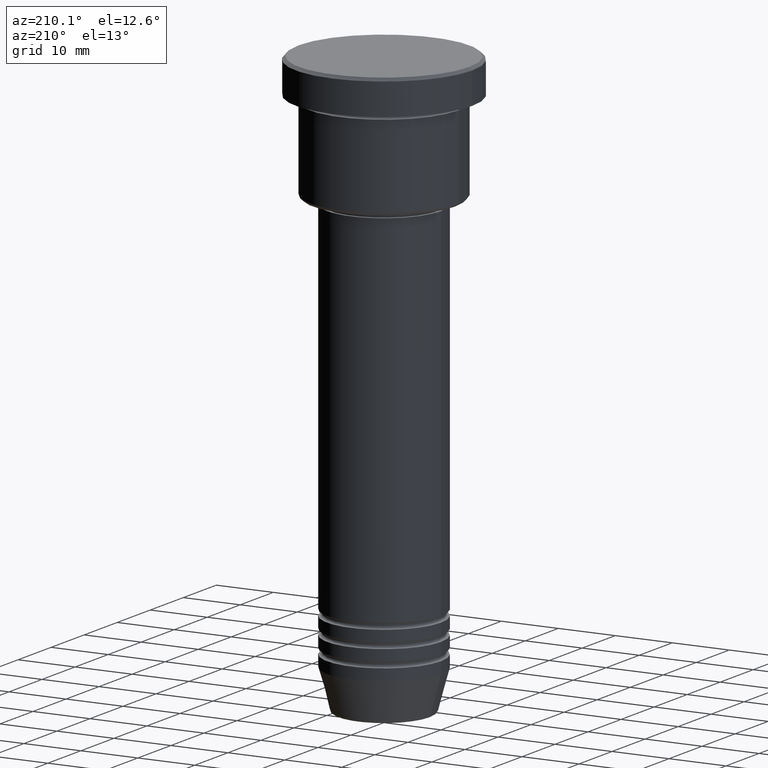
[diagram: clean part render]
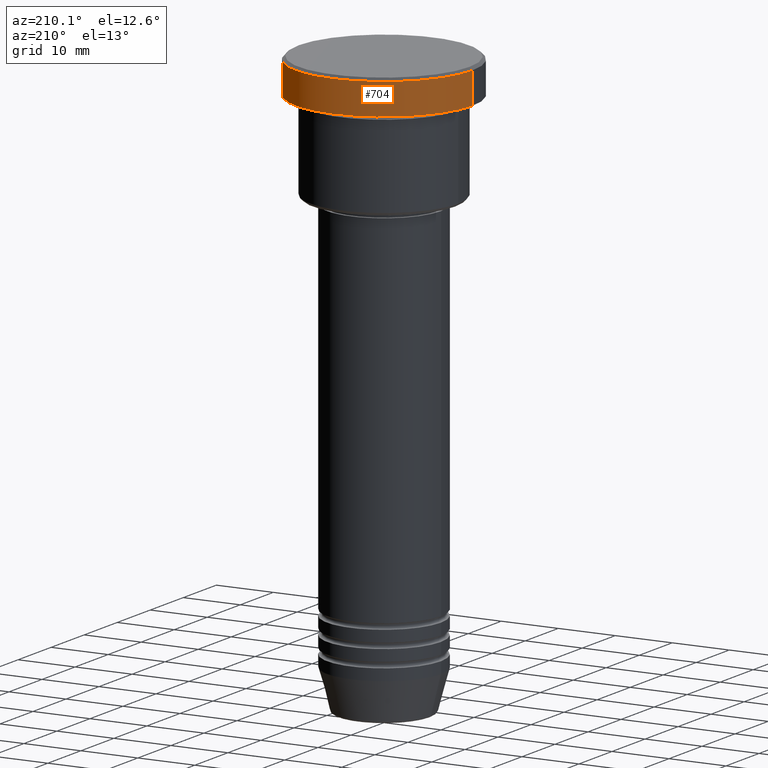
[diagram: same view with one face highlighted and labeled with its STEP entity id]
A machine part, auxiliary view. The second image highlights one B-rep face of the part: STEP entity #704.
In plain terms, the highlighted cylindrical surface (partial cylindrical patch) has radius 15.5 mm, axis along (-0, -0, 1).
Its self-contained STEP definition (entity closure, byte-faithful):
#53 = DIRECTION ( 'NONE',  ( 1.000000000000000000, 0.000000000000000000, 0.000000000000000000 ) ) ;
#70 = DIRECTION ( 'NONE',  ( 1.000000000000000000, 0.000000000000000000, 0.000000000000000000 ) ) ;
#77 = VERTEX_POINT ( 'NONE', #681 ) ;
#103 = ORIENTED_EDGE ( 'NONE', *, *, #303, .F. ) ;
#111 = EDGE_CURVE ( 'NONE', #77, #299, #594, .T. ) ;
#184 = FACE_OUTER_BOUND ( 'NONE', #839, .T. ) ;
#185 = EDGE_CURVE ( 'NONE', #299, #1053, #793, .T. ) ;
#205 = LINE ( 'NONE', #1174, #448 ) ;
#225 = ORIENTED_EDGE ( 'NONE', *, *, #613, .T. ) ;
#246 = CARTESIAN_POINT ( 'NONE',  ( 0.000000000000000000, 0.000000000000000000, -0.4999999999999987232 ) ) ;
#299 = VERTEX_POINT ( 'NONE', #730 ) ;
#303 = EDGE_CURVE ( 'NONE', #582, #1053, #205, .T. ) ;
#355 = DIRECTION ( 'NONE',  ( 0.000000000000000000, 0.000000000000000000, -1.000000000000000000 ) ) ;
#394 = ORIENTED_EDGE ( 'NONE', *, *, #185, .T. ) ;
#448 = VECTOR ( 'NONE', #1025, 1000.000000000000000 ) ;
#450 = CIRCLE ( 'NONE', #1117, 15.50000000000000000 ) ;
#503 = CARTESIAN_POINT ( 'NONE',  ( -15.50000000000000000, 1.898202538678397557E-15, 0.000000000000000000 ) ) ;
#531 = CYLINDRICAL_SURFACE ( 'NONE', #532, 15.50000000000000000 ) ;
#532 = AXIS2_PLACEMENT_3D ( 'NONE', #828, #891, #70 ) ;
#582 = VERTEX_POINT ( 'NONE', #896 ) ;
#594 = LINE ( 'NONE', #503, #854 ) ;
#613 = EDGE_CURVE ( 'NONE', #582, #77, #450, .T. ) ;
#637 = CARTESIAN_POINT ( 'NONE',  ( 0.000000000000000000, 0.000000000000000000, -5.999999999999995559 ) ) ;
#681 = CARTESIAN_POINT ( 'NONE',  ( -15.50000000000000000, 1.898202538678397557E-15, -5.999999999999995559 ) ) ;
#704 = ADVANCED_FACE ( 'NONE', ( #184 ), #531, .T. ) ;
#722 = CARTESIAN_POINT ( 'NONE',  ( 15.50000000000000000, 0.000000000000000000, -0.4999999999999987232 ) ) ;
#730 = CARTESIAN_POINT ( 'NONE',  ( -15.50000000000000000, 1.898202538678397557E-15, -0.4999999999999987232 ) ) ;
#775 = ORIENTED_EDGE ( 'NONE', *, *, #111, .T. ) ;
#793 = CIRCLE ( 'NONE', #905, 15.50000000000000000 ) ;
#823 = DIRECTION ( 'NONE',  ( 1.000000000000000000, 0.000000000000000000, 0.000000000000000000 ) ) ;
#828 = CARTESIAN_POINT ( 'NONE',  ( 0.000000000000000000, 0.000000000000000000, 0.000000000000000000 ) ) ;
#839 = EDGE_LOOP ( 'NONE', ( #225, #775, #394, #103 ) ) ;
#854 = VECTOR ( 'NONE', #878, 1000.000000000000000 ) ;
#878 = DIRECTION ( 'NONE',  ( -0.000000000000000000, -0.000000000000000000, 1.000000000000000000 ) ) ;
#891 = DIRECTION ( 'NONE',  ( -0.000000000000000000, -0.000000000000000000, 1.000000000000000000 ) ) ;
#896 = CARTESIAN_POINT ( 'NONE',  ( 15.50000000000000000, 0.000000000000000000, -5.999999999999995559 ) ) ;
#905 = AXIS2_PLACEMENT_3D ( 'NONE', #246, #355, #53 ) ;
#1025 = DIRECTION ( 'NONE',  ( -0.000000000000000000, -0.000000000000000000, 1.000000000000000000 ) ) ;
#1053 = VERTEX_POINT ( 'NONE', #722 ) ;
#1117 = AXIS2_PLACEMENT_3D ( 'NONE', #637, #1183, #823 ) ;
#1174 = CARTESIAN_POINT ( 'NONE',  ( 15.50000000000000000, 0.000000000000000000, 0.000000000000000000 ) ) ;
#1183 = DIRECTION ( 'NONE',  ( -0.000000000000000000, -0.000000000000000000, 1.000000000000000000 ) ) ;